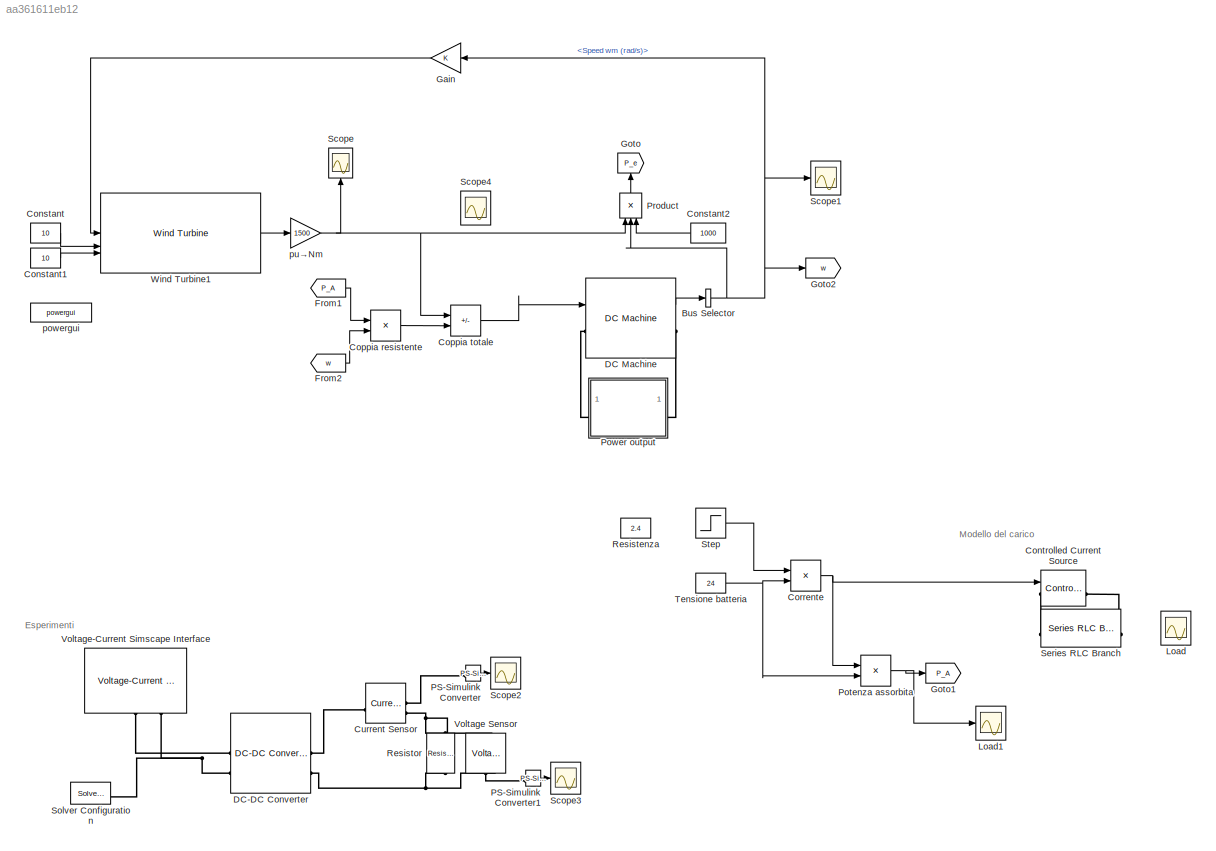
MODEL slx_aa361611eb12
KIND model
CONFIG AbsTol = auto
CONFIG EnableMultiTasking = off
CONFIG FixedStep = auto
CONFIG MaxStep = auto
CONFIG MinStep = auto
CONFIG RelTol = 1e-3
CONFIG SampleTimeConstraint = Unconstrained
CONFIG SolverName = VariableStepAuto
CONFIG StartTime = 0.0
CONFIG StopTime = 20
BLOCK [BusSelector] Bus Selector
  OutputSignals = Speed wm (rad/s)
BLOCK [Constant] Constant
  Value = 10
BLOCK [Constant] Constant1
  Value = 10
BLOCK [Constant] Constant2
  NameLocation = top
  Value = 1000
BLOCK [Reference] Controlled Current Source  REF=spsControlledCurrentSourceLib/Controlled Current Source
  Commented = on
  LibrarySourceBlock = sps_lib/Sources/Controlled Current Source
  NameLocation = left
  SourceBlock = spsControlledCurrentSourceLib/Controlled Current Source
  SourceType = Controlled Current Source
BLOCK [Product] Coppia resistente
  Inputs = */
BLOCK [Sum] Coppia totale
  IconShape = rectangular
  Inputs = +-
BLOCK [Product] Corrente
  Inputs = /*
BLOCK [Reference] Current Sensor  REF=fl_lib/Electrical/Electrical Sensors/Current Sensor
  Commented = on
  SourceBlock = fl_lib/Electrical/Electrical Sensors/Current Sensor
  SourceType = Current Sensor
BLOCK [Reference] DC Machine  REF=spsDCMachineLib/DC Machine
  LibrarySourceBlock = sps_lib/Electrical Machines/DC Machine
  SourceBlock = spsDCMachineLib/DC Machine
  SourceType = DC machine
BLOCK [Reference] DC-DC Converter  REF=ee_lib/Semiconductors &
Converters/Converters/DC-DC Converter
  Commented = on
  SourceBlock = ee_lib/Semiconductors &\nConverters/Converters/DC-DC Converter
  SourceType = DC-DC Converter
BLOCK [From] From1
  GotoTag = P_A
BLOCK [From] From2
  GotoTag = w
BLOCK [Gain] Gain
BLOCK [Goto] Goto
  GotoTag = P_e
  NameLocation = right
BLOCK [Goto] Goto1
  GotoTag = P_A
BLOCK [Goto] Goto2
  GotoTag = w
BLOCK [Scope] Load
  Commented = on
  Floating = off
  NumInputPorts = 1
  ScopeSpecificationString = Simulink.scopes.TimeScopeBlockCfg('CurrentConfiguration', extmgr.ConfigurationSet(extmgr.Configuration('Core','General UI',true),extmgr.Configuration('Core','Source UI',true),extmgr.Configuration('Sources','WiredSimulink',true,'DataLoggingVariableName','ScopeData4'),extmgr.Configuration('Visuals','Time Domain',true,'SerializedDisplays',{struct('MinYLimReal','140.00000','MaxYLimReal','340.00000','Y...<+1543ch>
BLOCK [Scope] Load1
  Floating = off
  NumInputPorts = 1
  ScopeSpecificationString = Simulink.scopes.TimeScopeBlockCfg('CurrentConfiguration', extmgr.ConfigurationSet(extmgr.Configuration('Core','General UI',true),extmgr.Configuration('Core','Source UI',true),extmgr.Configuration('Sources','WiredSimulink',true,'DataLoggingVariableName','ScopeData5'),extmgr.Configuration('Visuals','Time Domain',true,'SerializedDisplays',{struct('MinYLimReal','-29.99994','MaxYLimReal','269.99999','Y...<+1839ch>
BLOCK [Reference] PS-Simulink Converter  REF=nesl_utility/PS-Simulink
Converter
  Commented = on
  SourceBlock = nesl_utility/PS-Simulink\nConverter
  SourceType = PS-Simulink\nConverter
BLOCK [Reference] PS-Simulink Converter1  REF=nesl_utility/PS-Simulink
Converter
  Commented = on
  SourceBlock = nesl_utility/PS-Simulink\nConverter
  SourceType = PS-Simulink\nConverter
BLOCK [Product] Potenza assorbita
  Inputs = **
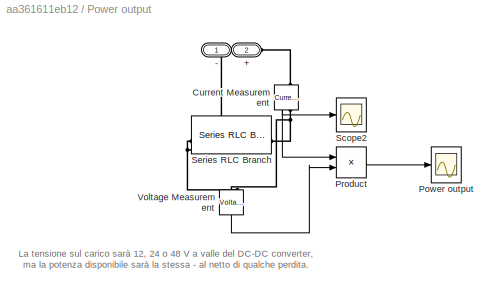
BLOCK [SubSystem] Power output
  Commented = on
BLOCK [PMIOPort] Power output/+
  Port = 2
  Side = Left
BLOCK [PMIOPort] Power output/-
  Side = Right
BLOCK [Reference] Power output/Current Measurement  REF=spsCurrentMeasurementLib/Current Measurement
  LibrarySourceBlock = sps_lib/Sensors and Measurements/Current Measurement
  NameLocation = left
  SourceBlock = spsCurrentMeasurementLib/Current Measurement
  SourceType = Current Measurement
  UserDataPersistent = on
BLOCK [Scope] Power output/Power output
  Floating = off
  NumInputPorts = 1
  ScopeSpecificationString = Simulink.scopes.TimeScopeBlockCfg('CurrentConfiguration', extmgr.ConfigurationSet(extmgr.Configuration('Core','General UI',true),extmgr.Configuration('Core','Source UI',true),extmgr.Configuration('Sources','WiredSimulink',true,'DataLoggingVariableName','ScopeData1'),extmgr.Configuration('Visuals','Time Domain',true,'SerializedDisplays',{struct('MinYLimReal','-0.38912','MaxYLimReal','3.50204','YLab...<+1898ch>
BLOCK [Product] Power output/Product
BLOCK [Scope] Power output/Scope2
  Floating = off
  NumInputPorts = 1
  ScopeSpecificationString = Simulink.scopes.TimeScopeBlockCfg('CurrentConfiguration', extmgr.ConfigurationSet(extmgr.Configuration('Core','General UI',true),extmgr.Configuration('Core','Source UI',true),extmgr.Configuration('Sources','WiredSimulink',true,'DataLoggingVariableName','ScopeData1'),extmgr.Configuration('Visuals','Time Domain',true,'SerializedDisplays',{struct('MinYLimReal','-0.62768','MaxYLimReal','0.06974','YLab...<+1795ch>
BLOCK [Reference] Power output/Series RLC Branch  REF=spsSeriesRLCBranchLib/Series RLC Branch
  LibrarySourceBlock = sps_lib/Passives/Series RLC Branch
  SourceBlock = spsSeriesRLCBranchLib/Series RLC Branch
  SourceType = Series RLC Branch
BLOCK [Reference] Power output/Voltage Measurement  REF=spsVoltageMeasurementLib/Voltage Measurement
  LibrarySourceBlock = sps_lib/Sensors and Measurements/Voltage Measurement
  NameLocation = left
  SourceBlock = spsVoltageMeasurementLib/Voltage Measurement
  SourceType = Voltage Measurement
  UserDataPersistent = on
BLOCK [Product] Product
  Inputs = 3
  NameLocation = right
BLOCK [Constant] Resistenza
  Commented = on
  Value = 2.4
BLOCK [Reference] Resistor  REF=ee_lib/Passive/Resistor
  Commented = on
  NameLocation = left
  SourceBlock = ee_lib/Passive/Resistor
  SourceType = Resistor
BLOCK [Scope] Scope
  Floating = off
  NameLocation = right
  NumInputPorts = 1
  ScopeSpecificationString = Simulink.scopes.TimeScopeBlockCfg('CurrentConfiguration', extmgr.ConfigurationSet(extmgr.Configuration('Core','General UI',true),extmgr.Configuration('Core','Source UI',true),extmgr.Configuration('Sources','WiredSimulink',true),extmgr.Configuration('Visuals','Time Domain',true,'SerializedDisplays',{struct('MinYLimReal','-1767.73367','MaxYLimReal','275.47406','YLabelReal','','MinYLimMag','  0.00000...<+1819ch>
BLOCK [Scope] Scope1
  Floating = off
  NumInputPorts = 1
  ScopeSpecificationString = Simulink.scopes.TimeScopeBlockCfg('CurrentConfiguration', extmgr.ConfigurationSet(extmgr.Configuration('Core','General UI',true),extmgr.Configuration('Core','Source UI',true),extmgr.Configuration('Sources','WiredSimulink',true,'DataLoggingVariableName','ScopeData1'),extmgr.Configuration('Visuals','Time Domain',true,'SerializedDisplays',{struct('MinYLimReal','0.8818','MaxYLimReal','2.06376','YLabel...<+1489ch>
BLOCK [Scope] Scope2
  Commented = on
  Floating = off
  NumInputPorts = 1
  ScopeSpecificationString = Simulink.scopes.TimeScopeBlockCfg('CurrentConfiguration', extmgr.ConfigurationSet(extmgr.Configuration('Core','General UI',true),extmgr.Configuration('Core','Source UI',true),extmgr.Configuration('Sources','WiredSimulink',true,'DataLoggingVariableName','ScopeData2'),extmgr.Configuration('Visuals','Time Domain',true),extmgr.Configuration('Tools','Plot Navigation',true),extmgr.Configuration('Tools',...<+40ch>
BLOCK [Scope] Scope3
  Commented = on
  Floating = off
  NumInputPorts = 1
  ScopeSpecificationString = Simulink.scopes.TimeScopeBlockCfg('CurrentConfiguration', extmgr.ConfigurationSet(extmgr.Configuration('Core','General UI',true),extmgr.Configuration('Core','Source UI',true),extmgr.Configuration('Sources','WiredSimulink',true,'DataLoggingVariableName','ScopeData3'),extmgr.Configuration('Visuals','Time Domain',true),extmgr.Configuration('Tools','Plot Navigation',true),extmgr.Configuration('Tools',...<+40ch>
BLOCK [Scope] Scope4
  Floating = off
  NumInputPorts = 1
  ScopeSpecificationString = Simulink.scopes.TimeScopeBlockCfg('CurrentConfiguration', extmgr.ConfigurationSet(extmgr.Configuration('Core','General UI',true),extmgr.Configuration('Core','Source UI',true),extmgr.Configuration('Sources','WiredSimulink',true,'DataLoggingVariableName','ScopeData6'),extmgr.Configuration('Visuals','Time Domain',true,'SerializedDisplays',{struct('MinYLimReal','-1.00000','MaxYLimReal','1.00000','YLab...<+1521ch>
BLOCK [Reference] Series RLC Branch  REF=spsSeriesRLCBranchLib/Series RLC Branch
  Commented = on
  LibrarySourceBlock = sps_lib/Passives/Series RLC Branch
  SourceBlock = spsSeriesRLCBranchLib/Series RLC Branch
  SourceType = Series RLC Branch
BLOCK [Reference] Solver Configuration  REF=nesl_utility/Solver
Configuration
  Commented = on
  SourceBlock = nesl_utility/Solver\nConfiguration
  SourceType = Solver\nConfiguration
BLOCK [Step] Step
  After = 2.4
  Before = 10e6
  SampleTime = 0
  Time = 10
BLOCK [Constant] Tensione batteria
  Value = 24
BLOCK [Reference] Voltage Sensor  REF=fl_lib/Electrical/Electrical Sensors/Voltage Sensor
  Commented = on
  NameLocation = right
  SourceBlock = fl_lib/Electrical/Electrical Sensors/Voltage Sensor
  SourceType = Voltage Sensor
BLOCK [Reference] Voltage-Current Simscape Interface  REF=spsVoltageCurrentSimscapeInterfaceLib/Voltage-Current
Simscape Interface
  Commented = on
  LibrarySourceBlock = sps_lib/Utilities/Voltage-Current\nSimscape Interface
  NameLocation = left
  SourceBlock = spsVoltageCurrentSimscapeInterfaceLib/Voltage-Current\nSimscape Interface
  SourceType = Specialized Power Systems - Simscape Interface Element
BLOCK [Reference] Wind Turbine1  REF=spsWindTurbineLib/Wind Turbine
  LibrarySourceBlock = sps_lib/Electrical Machines/Wind Turbine
  SourceBlock = spsWindTurbineLib/Wind Turbine
  SourceType = Wind Turbine
BLOCK [Reference] powergui  REF=sps_lib/powergui
  LibrarySourceBlock = sps_lib/powergui
  Priority = 1
  SourceBlock = sps_lib/powergui
  SourceType = PSB option menu block
BLOCK [Gain] pu→Nm
  Gain = 1500
ANNOTATION (root): Esperimenti
ANNOTATION (root): Modello del carico
ANNOTATION Power output: La tensione sul carico sarà 12, 24 o 48 V a valle del DC-DC converter, ma la potenza disponibile sarà la stessa - al netto di qualche perdita.
NET Bus Selector:1 -> Gain:1, Goto2:1, Product:2, Scope1:1
LINE Constant1:1 -> Wind Turbine1:3
LINE Constant2:1 -> Product:3
LINE Constant:1 -> Wind Turbine1:2
LINE Coppia resistente:1 -> Coppia totale:2
LINE Coppia totale:1 -> DC Machine:1
NET Corrente:1 -> Controlled Current Source:1, Potenza assorbita:1
LINE DC Machine:1 -> Bus Selector:1
LINE From1:1 -> Coppia resistente:1
LINE From2:1 -> Coppia resistente:2
LINE Gain:1 -> Wind Turbine1:1
LINE PS-Simulink Converter1:1 -> Scope3:1
LINE PS-Simulink Converter:1 -> Scope2:1
NET Potenza assorbita:1 -> Goto1:1, Load1:1
NET Power output/Current Measurement:1 -> Power output/Product:1, Power output/Scope2:1
LINE Power output/Product:1 -> Power output/Power output:1
LINE Power output/Voltage Measurement:1 -> Power output/Product:2
LINE Product:1 -> Goto:1
LINE Step:1 -> Corrente:1
NET Tensione batteria:1 -> Corrente:2, Potenza assorbita:2
LINE Wind Turbine1:1 -> pu→Nm:1
NET pu→Nm:1 -> Coppia totale:1, Product:1, Scope:1
PLINE Controlled Current Source:LConn1 -- Series RLC Branch:LConn1
PLINE Controlled Current Source:RConn1 -- Series RLC Branch:RConn1
PLINE Current Sensor:LConn1 -- DC-DC Converter:RConn1
PLINE Current Sensor:RConn1 -- PS-Simulink Converter:LConn1
PNET net1: Current Sensor:RConn2 -- Resistor:LConn1 -- Voltage Sensor:LConn1
PLINE DC Machine:LConn1 -- Power output:RConn1
PLINE DC Machine:RConn1 -- Power output:LConn1
PLINE DC-DC Converter:LConn1 -- Voltage-Current Simscape Interface:RConn1
PNET net2: DC-DC Converter:LConn2 -- Solver Configuration:RConn1 -- Voltage-Current Simscape Interface:RConn2
PNET net3: DC-DC Converter:RConn2 -- Resistor:RConn1 -- Voltage Sensor:RConn2
PLINE PS-Simulink Converter1:LConn1 -- Voltage Sensor:RConn1
PLINE Power output/+:RConn1 -- Power output/Current Measurement:LConn1
PNET net4: Power output/-:RConn1 -- Power output/Series RLC Branch:LConn1 -- Power output/Voltage Measurement:LConn2
PNET net5: Power output/Current Measurement:RConn1 -- Power output/Series RLC Branch:RConn1 -- Power output/Voltage Measurement:LConn1
note: NET lines group one-source signal fan-out (src -> all destinations, sorted); 1:1 wires keep LINE; PNET lines group multi-terminal physical nets as a canonical sorted terminal list (undirected conserving connections); 2-terminal nets keep the pairwise PLINE form
